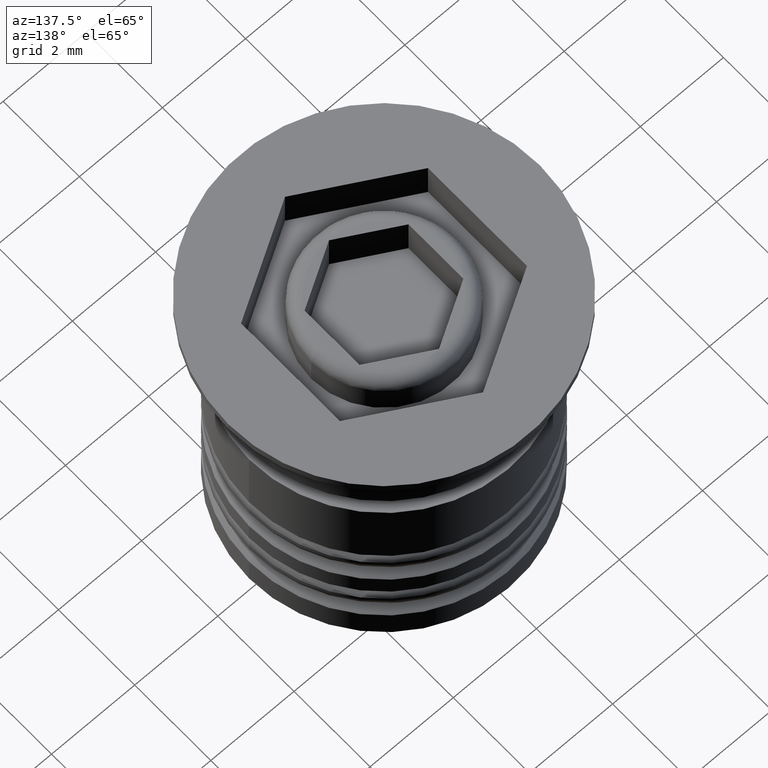
[diagram: clean part render]
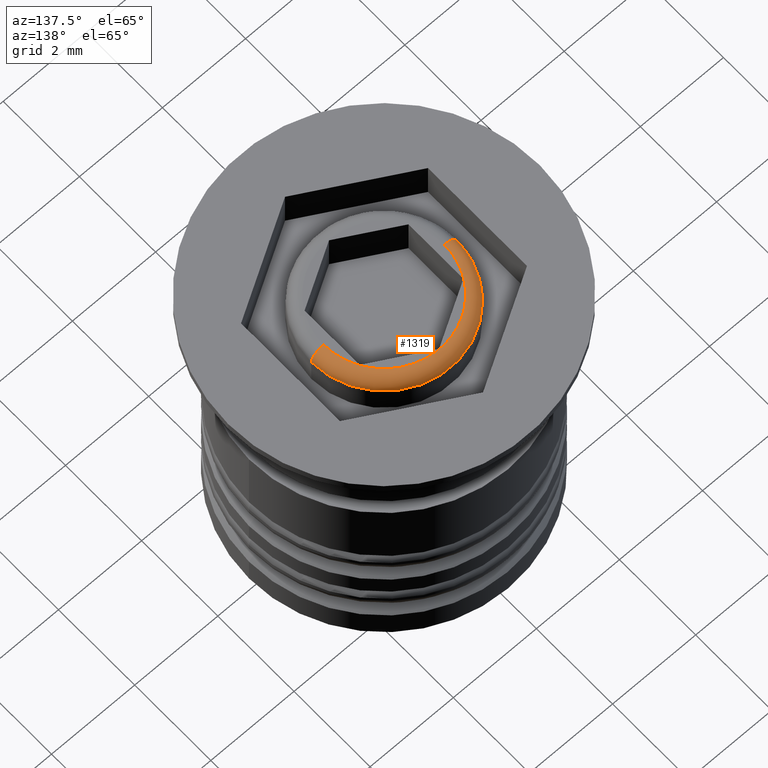
[diagram: same view with one face highlighted and labeled with its STEP entity id]
A machine part, auxiliary view. The second image highlights one B-rep face of the part: STEP entity #1319.
In plain terms, the highlighted toroidal blend (fillet) surface has major radius 1.45 mm and minor (blend) radius 0.3 mm.
Its self-contained STEP definition (entity closure, byte-faithful):
#101 = CARTESIAN_POINT ( 'NONE',  ( 0.000000000000000000, 0.000000000000000000, -0.2999999999999999334 ) ) ;
#195 = EDGE_CURVE ( 'NONE', #856, #345, #1039, .T. ) ;
#215 = CARTESIAN_POINT ( 'NONE',  ( 1.749999999999999778, 0.000000000000000000, -0.2999999999999999334 ) ) ;
#246 = CIRCLE ( 'NONE', #723, 1.449999999999999956 ) ;
#284 = CARTESIAN_POINT ( 'NONE',  ( 1.449999999999999956, 0.000000000000000000, 0.000000000000000000 ) ) ;
#345 = VERTEX_POINT ( 'NONE', #215 ) ;
#349 = ORIENTED_EDGE ( 'NONE', *, *, #608, .T. ) ;
#457 = EDGE_CURVE ( 'NONE', #345, #1026, #1567, .T. ) ;
#460 = VERTEX_POINT ( 'NONE', #1372 ) ;
#465 = CARTESIAN_POINT ( 'NONE',  ( 0.000000000000000000, 0.000000000000000000, 0.000000000000000000 ) ) ;
#608 = EDGE_CURVE ( 'NONE', #856, #460, #868, .T. ) ;
#689 = AXIS2_PLACEMENT_3D ( 'NONE', #101, #1199, #1111 ) ;
#723 = AXIS2_PLACEMENT_3D ( 'NONE', #465, #1599, #1311 ) ;
#782 = AXIS2_PLACEMENT_3D ( 'NONE', #1218, #1080, #1517 ) ;
#824 = FACE_OUTER_BOUND ( 'NONE', #1572, .T. ) ;
#832 = DIRECTION ( 'NONE',  ( 0.000000000000000000, 0.000000000000000000, -1.000000000000000000 ) ) ;
#856 = VERTEX_POINT ( 'NONE', #1242 ) ;
#868 = CIRCLE ( 'NONE', #1705, 0.2999999999999999334 ) ;
#875 = DIRECTION ( 'NONE',  ( 1.224646799147353207E-16, 1.000000000000000000, 0.000000000000000000 ) ) ;
#918 = EDGE_CURVE ( 'NONE', #1026, #460, #246, .T. ) ;
#939 = ORIENTED_EDGE ( 'NONE', *, *, #918, .F. ) ;
#988 = ORIENTED_EDGE ( 'NONE', *, *, #457, .F. ) ;
#1007 = CARTESIAN_POINT ( 'NONE',  ( -1.449999999999999956, 1.775737858763661916E-16, -0.2999999999999999334 ) ) ;
#1026 = VERTEX_POINT ( 'NONE', #284 ) ;
#1034 = DIRECTION ( 'NONE',  ( -1.000000000000000000, 1.224646799147353207E-16, 0.000000000000000000 ) ) ;
#1039 = CIRCLE ( 'NONE', #1093, 1.749999999999999778 ) ;
#1080 = DIRECTION ( 'NONE',  ( 0.000000000000000000, -1.000000000000000000, 0.000000000000000000 ) ) ;
#1084 = CARTESIAN_POINT ( 'NONE',  ( 0.000000000000000000, 0.000000000000000000, -0.2999999999999999334 ) ) ;
#1093 = AXIS2_PLACEMENT_3D ( 'NONE', #1084, #832, #1394 ) ;
#1111 = DIRECTION ( 'NONE',  ( 1.000000000000000000, 0.000000000000000000, 0.000000000000000000 ) ) ;
#1199 = DIRECTION ( 'NONE',  ( -0.000000000000000000, -0.000000000000000000, 1.000000000000000000 ) ) ;
#1218 = CARTESIAN_POINT ( 'NONE',  ( 1.449999999999999956, 0.000000000000000000, -0.2999999999999999334 ) ) ;
#1242 = CARTESIAN_POINT ( 'NONE',  ( -1.749999999999999778, 2.143131898507868051E-16, -0.2999999999999999334 ) ) ;
#1311 = DIRECTION ( 'NONE',  ( 1.000000000000000000, 0.000000000000000000, 0.000000000000000000 ) ) ;
#1319 = ADVANCED_FACE ( 'NONE', ( #824 ), #1767, .T. ) ;
#1372 = CARTESIAN_POINT ( 'NONE',  ( -1.449999999999999956, 1.959434878635764984E-16, 0.000000000000000000 ) ) ;
#1394 = DIRECTION ( 'NONE',  ( 1.000000000000000000, 0.000000000000000000, 0.000000000000000000 ) ) ;
#1450 = ORIENTED_EDGE ( 'NONE', *, *, #195, .F. ) ;
#1517 = DIRECTION ( 'NONE',  ( 0.000000000000000000, 0.000000000000000000, -1.000000000000000000 ) ) ;
#1567 = CIRCLE ( 'NONE', #782, 0.2999999999999999334 ) ;
#1572 = EDGE_LOOP ( 'NONE', ( #1450, #349, #939, #988 ) ) ;
#1599 = DIRECTION ( 'NONE',  ( -0.000000000000000000, -0.000000000000000000, 1.000000000000000000 ) ) ;
#1705 = AXIS2_PLACEMENT_3D ( 'NONE', #1007, #875, #1034 ) ;
#1767 = TOROIDAL_SURFACE ( 'NONE', #689, 1.449999999999999956, 0.2999999999999999889 ) ;